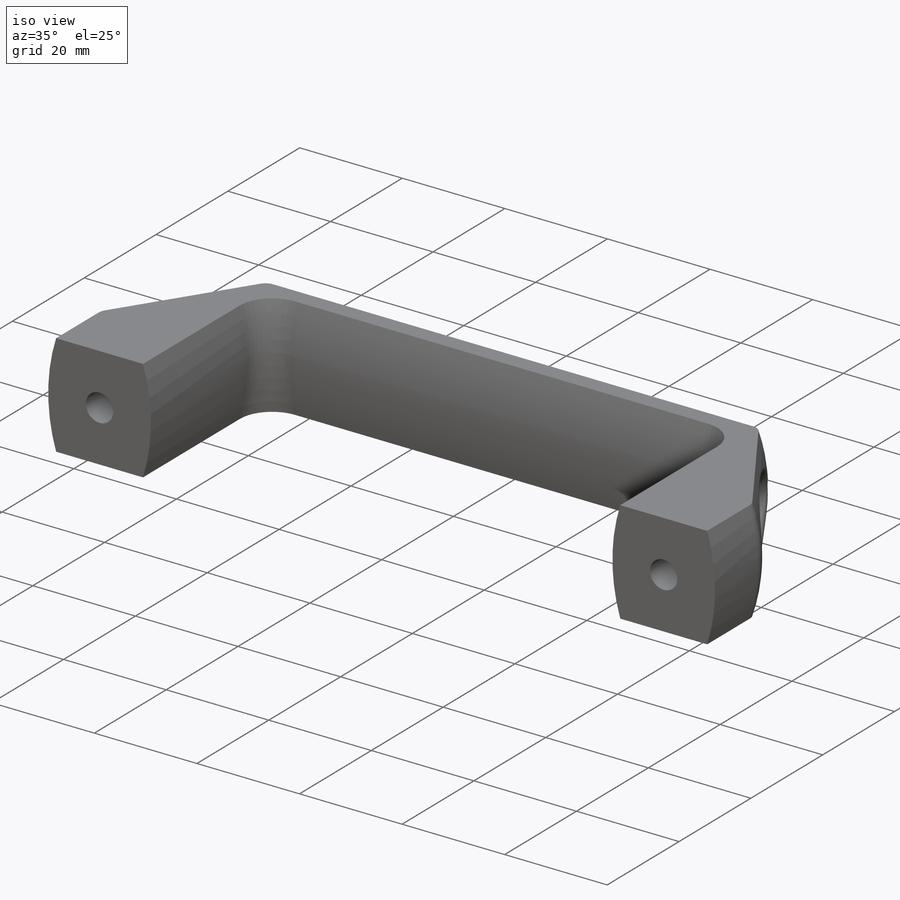
[diagram: iso view]
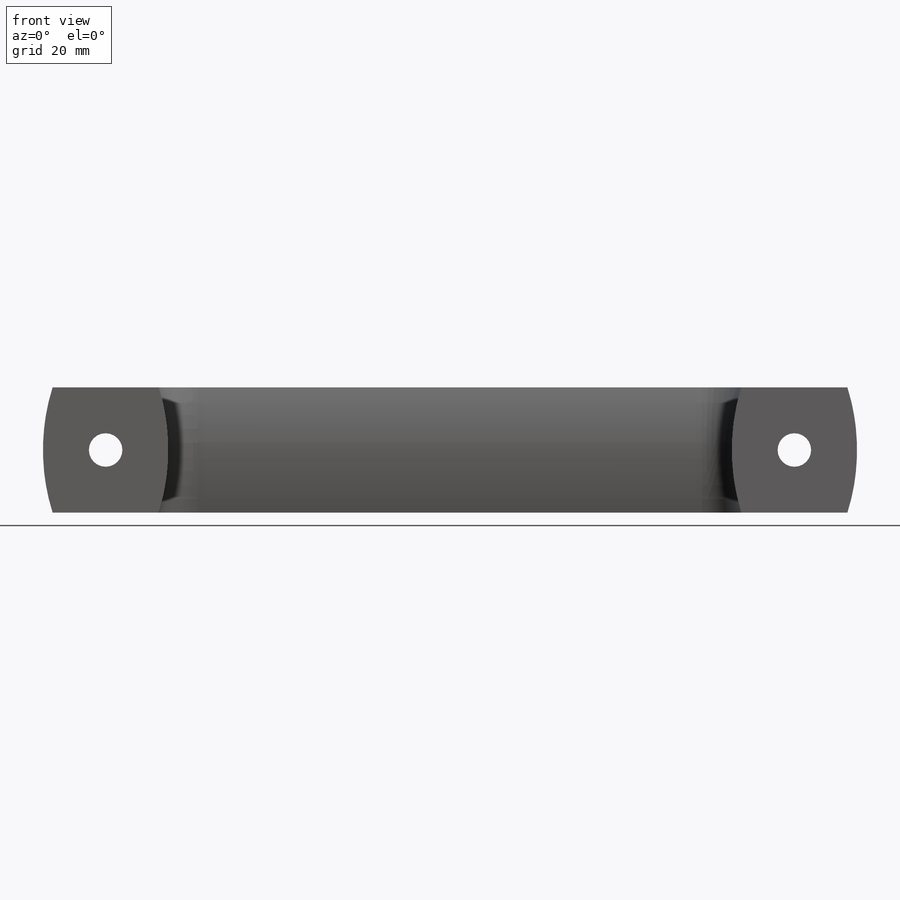
[diagram: front view]
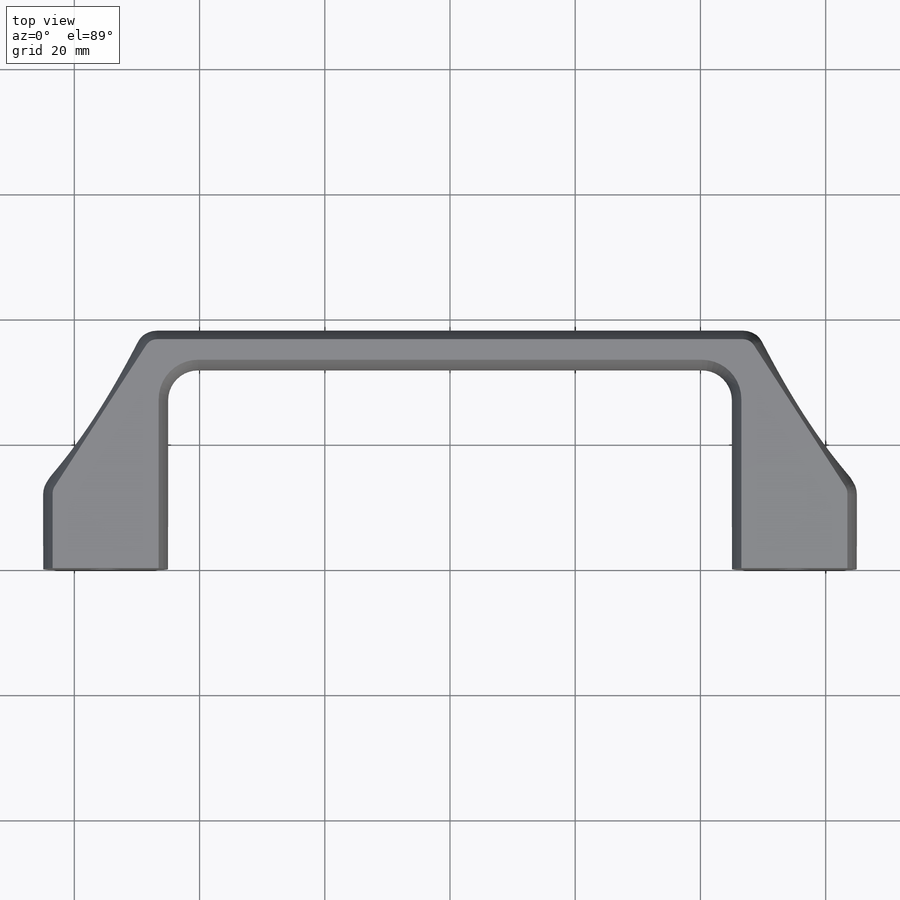
[diagram: top view]
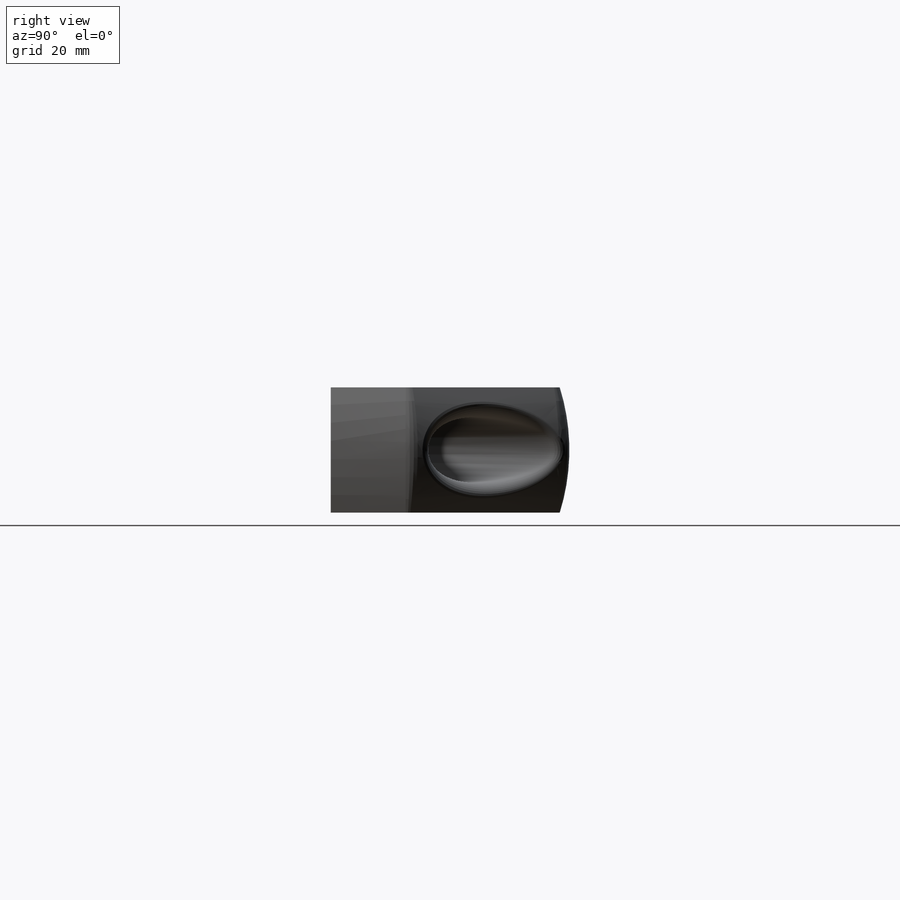
[diagram: right view]
SOLIDWORKS PART (.sldprt)
format: sldprt  version: not decoded by parser v0  size: 407,552 bytes
history: native  units: mm
features: sketch x8, sweep x2, cut_extrude x2, material x1, extrude x1, fillet x1 (+13 scaffold rows collapsed)
feature tree (28):
  scaffold x13  (default folders/planes/origin — collapsed)
  material  "ABS"
  sketch  "Sketch1"  dims[c1.Screw Size=5.35mm c1.D3=~14.480718mm c1.D1=10.5mm c1.D2=12.6mm c1.A1=110.0mm c2.D2=1.016mm c2.D3=1.016mm]
  sketch  "Sketch2"  dims[c1.D1=4.7625mm c1.D2=~3.571875mm c1.H=41.0mm c1.L=109.0mm c1.H2=13.0mm c1.Projection=38.1mm c1.H1=7.0mm c1.Width=6.35mm c1.D7=~39.645074mm c1.D8=~3.75075mm c1.D3=~78.014592mm c1.D4=~39.460408mm c1.Handle opening=90.0mm c2.D4=20.0mm c2.D3=13.0mm c2.D5=20.0mm]
  extrude  "Extrude1"  Depth=20mm Width=20mm
  sketch  "Sketch5"  dims[D1=~1.530378mm]
  sketch  "Sketch6"
  sweep  "Cut-Sweep1"
  sketch  "Sketch7"  dims[c1.D1=~1.530378mm c1.D2=3.175mm c2.D1=~1.530378mm c2.D2=5.08mm]
  sketch  "Sketch9"
  sweep  "Cut-Sweep2"
  sketch  "Sketch3"
  cut_extrude  "Extrude2"  Depth=10.5mm
  sketch  "Sketch4"
  cut_extrude  "Extrude3"  [1 undecoded]
  fillet  "Fillet1"  Radius=2mm
decode coverage: 7 of 14 modeling features carry decoded parameters
note: ~ marks probable driven/reference dimensions
note: 1 parameter value undecoded
note: suppression state not decoded; provenance and decode notes live in map.json
